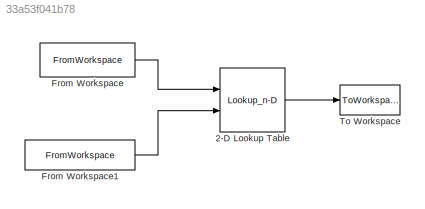
MODEL slx_33a53f041b78
KIND model
BLOCK [Lookup_n-D] 2-D Lookup Table
  BreakpointsForDimension1 = [1:yAxis]
  BreakpointsForDimension2 = [1:xAxis]
  InternalRulePriority = Speed
  Ports = [2, 1]
  RndMeth = Simplest
  Table = data
BLOCK [FromWorkspace] From Workspace
  OutDataTypeStr = double
  SampleTime = 0
  VariableName = sensorCoordinateY
  ZeroCross = on
BLOCK [FromWorkspace] From Workspace1
  OutDataTypeStr = double
  SampleTime = 0
  VariableName = sensorCoordinateX
  ZeroCross = on
BLOCK [ToWorkspace] To Workspace
  FixptAsFi = on
  MaxDataPoints = inf
  Ports = [1]
  SampleTime = -1
  Save2DSignal = 3-D array (concatenate along third dimension)
  SaveFormat = Timeseries
  VariableName = sensorResult
LINE 2-D Lookup Table:1 -> To Workspace:1
LINE From Workspace1:1 -> 2-D Lookup Table:2
LINE From Workspace:1 -> 2-D Lookup Table:1
